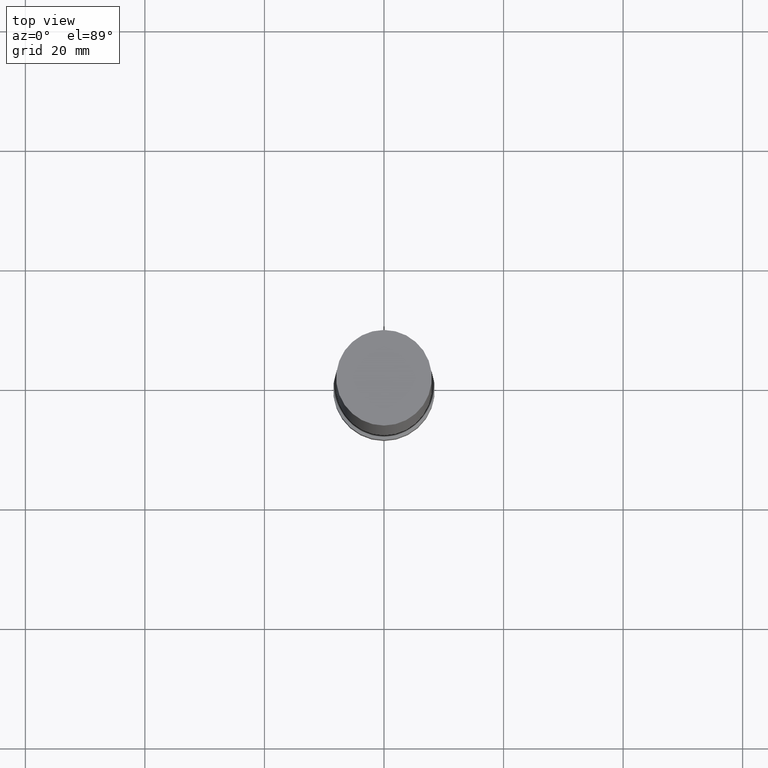
[diagram: clean part render]
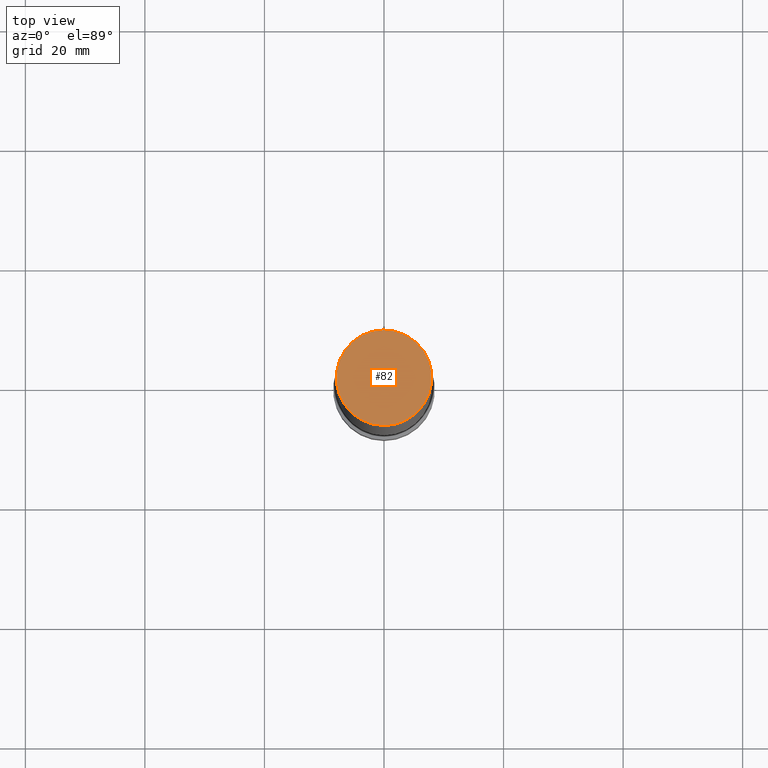
[diagram: same view with one face highlighted and labeled with its STEP entity id]
A machine part, top view. The second image highlights one B-rep face of the part: STEP entity #82.
In plain terms, the highlighted planar face has unit normal (-0, -0, 1).
Its self-contained STEP definition (entity closure, byte-faithful):
#82=ADVANCED_FACE('',(#104),#105,.T.);
#104=FACE_OUTER_BOUND('',#126,.T.);
#105=PLANE('',#127);
#126=EDGE_LOOP('',(#162));
#127=AXIS2_PLACEMENT_3D('',#163,#164,#165);
#162=ORIENTED_EDGE('',*,*,#172,.T.);
#163=CARTESIAN_POINT('',(-7.34788079488412E-015,3.99999999999792,120.0));
#164=DIRECTION('',(-6.12323399573677E-017,-1.6109676234517E-014,1.0));
#165=DIRECTION('',(-9.91260324525838E-031,1.0,1.6109676234517E-014));
#172=EDGE_CURVE('',#185,#185,#186,.T.);
#185=VERTEX_POINT('',#199);
#186=CIRCLE('',#200,8.00000000000002);
#199=CARTESIAN_POINT('',(-7.34788079488413E-015,7.99999999999793,120.0));
#200=AXIS2_PLACEMENT_3D('',#219,#220,#221);
#219=CARTESIAN_POINT('',(-7.34788079488412E-015,-2.08599077134753E-012,120.0));
#220=DIRECTION('',(-6.12323399573677E-017,-1.74562335663977E-014,1.0));
#221=DIRECTION('',(-1.07371318084364E-030,1.0,1.74562335663977E-014));